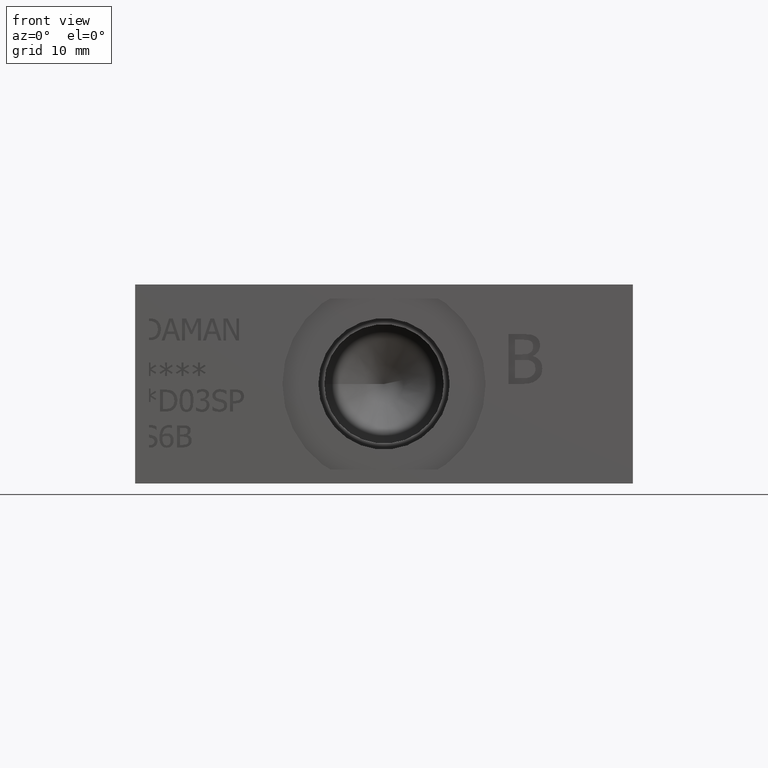
[diagram: clean part render]
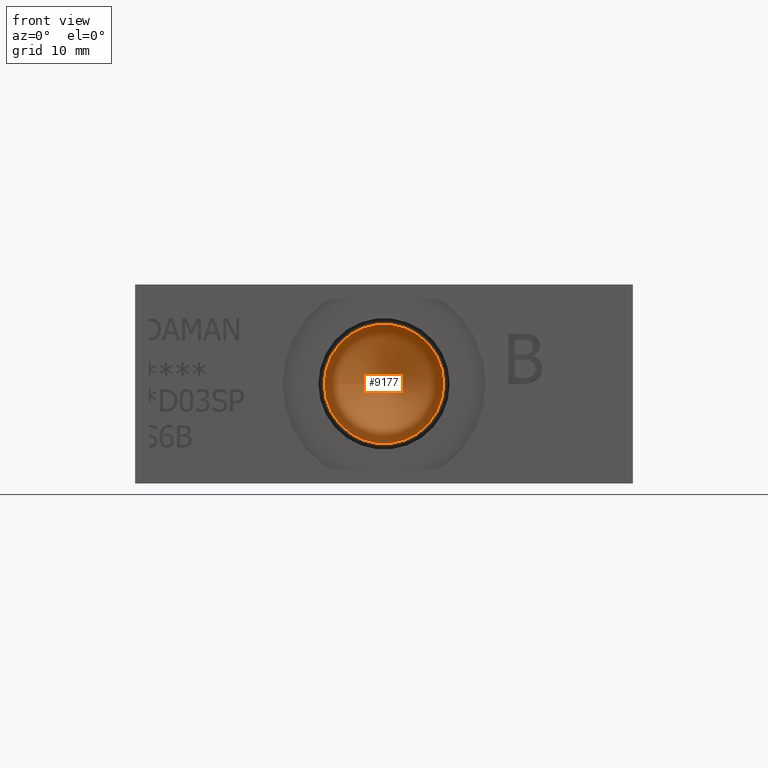
[diagram: same view with one face highlighted and labeled with its STEP entity id]
A machine part, front view. The second image highlights one B-rep face of the part: STEP entity #9177.
In plain terms, the highlighted conical surface has half-angle 60 deg.
Its self-contained STEP definition (entity closure, byte-faithful):
#49=CONICAL_SURFACE('',#9565,3.81,1.0471975511966);
#109=CIRCLE('',#9566,7.62);
#110=CIRCLE('',#9567,7.62);
#921=FACE_OUTER_BOUND('',#1440,.T.);
#1440=EDGE_LOOP('',(#7998,#7999,#8000,#8001));
#2353=LINE('',#15672,#3237);
#3237=VECTOR('',#11175,3.81);
#4357=VERTEX_POINT('',#15668);
#4358=VERTEX_POINT('',#15669);
#4359=VERTEX_POINT('',#15671);
#5603=EDGE_CURVE('',#4357,#4358,#109,.T.);
#5604=EDGE_CURVE('',#4358,#4359,#2353,.T.);
#5605=EDGE_CURVE('',#4358,#4357,#110,.T.);
#7998=ORIENTED_EDGE('',*,*,#5603,.T.);
#7999=ORIENTED_EDGE('',*,*,#5604,.T.);
#8000=ORIENTED_EDGE('',*,*,#5604,.F.);
#8001=ORIENTED_EDGE('',*,*,#5605,.T.);
#9177=ADVANCED_FACE('',(#921),#49,.F.);
#9565=AXIS2_PLACEMENT_3D('',#15667,#11171,#11172);
#9566=AXIS2_PLACEMENT_3D('',#15670,#11173,#11174);
#9567=AXIS2_PLACEMENT_3D('',#15673,#11176,#11177);
#11171=DIRECTION('center_axis',(0.,-1.,0.));
#11172=DIRECTION('ref_axis',(1.,0.,0.));
#11173=DIRECTION('center_axis',(0.,-1.,0.));
#11174=DIRECTION('ref_axis',(1.,0.,0.));
#11175=DIRECTION('',(0.866025403784439,0.5,1.06057523872491E-16));
#11176=DIRECTION('center_axis',(0.,-1.,0.));
#11177=DIRECTION('ref_axis',(1.,0.,0.));
#15667=CARTESIAN_POINT('Origin',(31.75,22.4181045256125,12.7));
#15668=CARTESIAN_POINT('',(39.37,20.2184,12.7));
#15669=CARTESIAN_POINT('',(24.13,20.2184,12.7));
#15670=CARTESIAN_POINT('Origin',(31.75,20.2184,12.7));
#15671=CARTESIAN_POINT('',(31.75,24.617809051225,12.7));
#15672=CARTESIAN_POINT('',(27.94,22.4181045256125,12.7));
#15673=CARTESIAN_POINT('Origin',(31.75,20.2184,12.7));